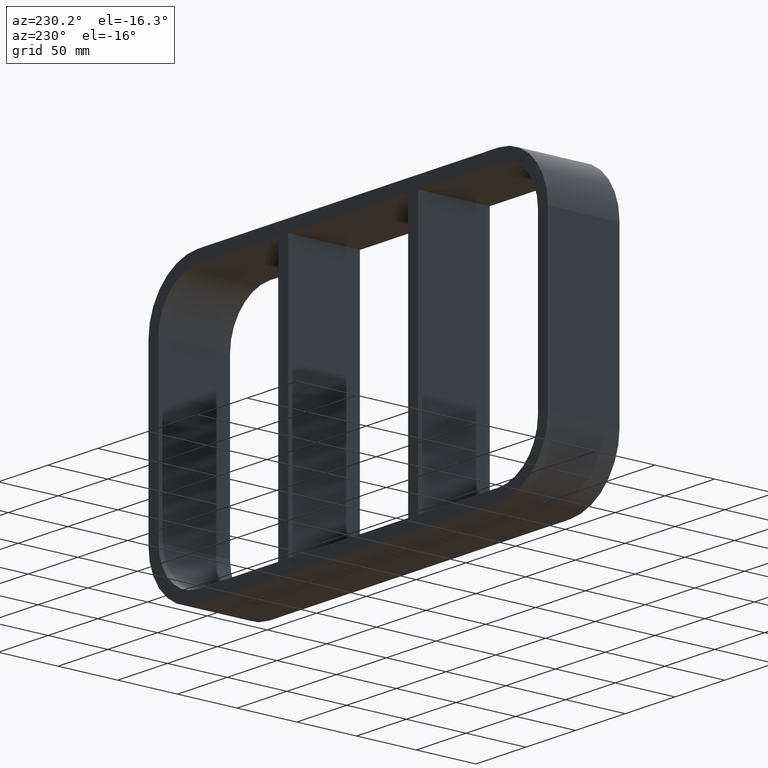
[diagram: clean part render]
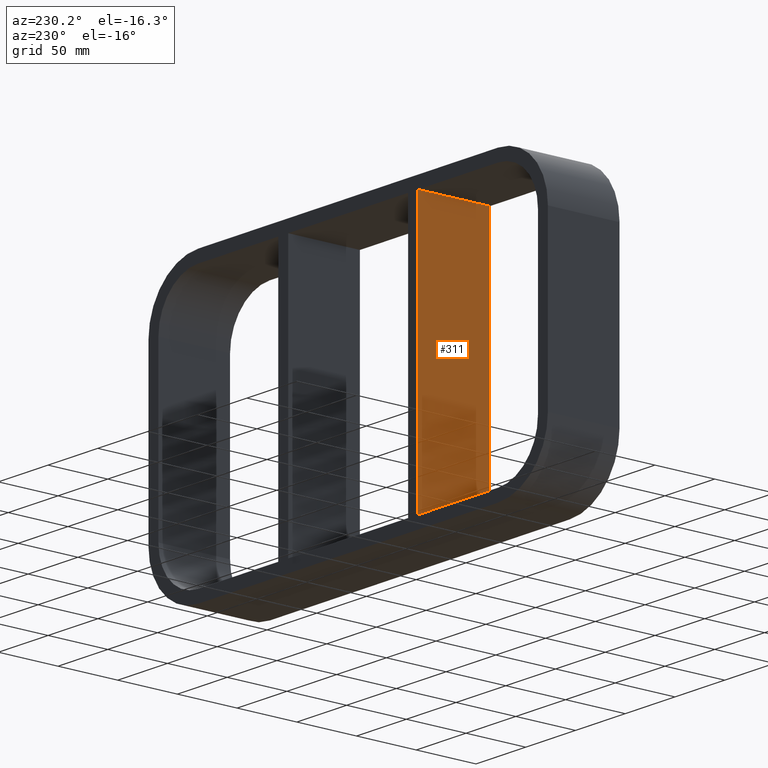
[diagram: same view with one face highlighted and labeled with its STEP entity id]
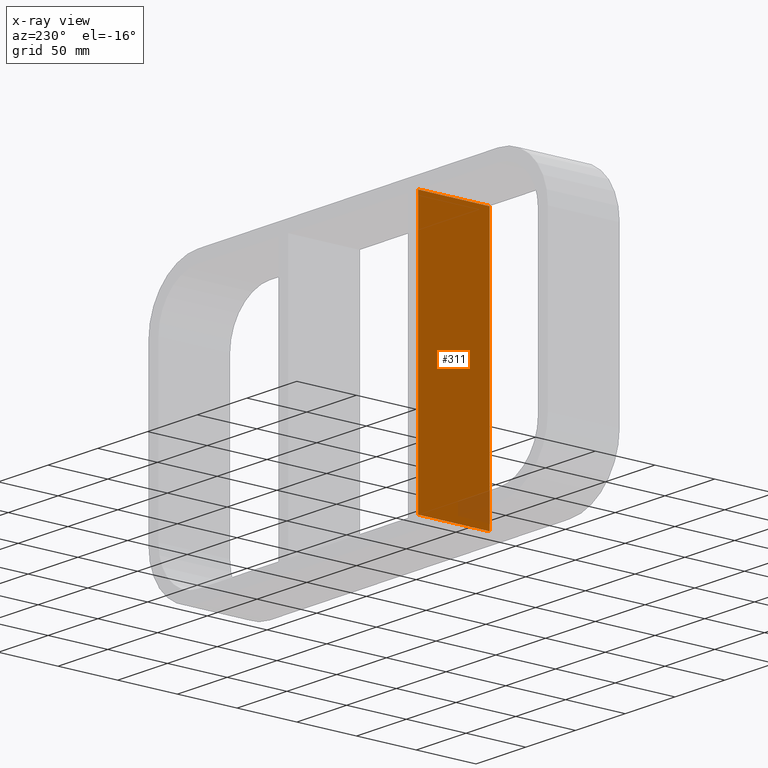
[diagram: x-ray of the same camera — body ghosted, the highlighted face saturated]
A machine part, auxiliary view. The second image highlights one B-rep face of the part: STEP entity #311.
The next image is the same camera in x-ray: the body ghosted, the highlighted face saturated — about 3% of this face is hidden behind the body in this view.
In plain terms, the highlighted planar face has unit normal (-1, 0, 0).
Its self-contained STEP definition (entity closure, byte-faithful):
#272=CARTESIAN_POINT('',(-70.250000000001478,-3.0,-108.99999999999999));
#273=DIRECTION('',(-1.0,0.0,0.0));
#274=DIRECTION('',(0.0,0.0,1.0));
#275=AXIS2_PLACEMENT_3D('',#272,#273,#274);
#276=PLANE('',#275);
#277=CARTESIAN_POINT('',(-70.250000000001478,-3.0,-108.99999999999999));
#278=VERTEX_POINT('',#277);
#279=CARTESIAN_POINT('',(-70.250000000001506,-3.0,108.99999999999999));
#280=VERTEX_POINT('',#279);
#281=CARTESIAN_POINT('',(-70.250000000001478,-3.0,-108.99999999999999));
#282=DIRECTION('',(0.0,0.0,1.0));
#283=VECTOR('',#282,217.99999999999997);
#284=LINE('',#281,#283);
#285=EDGE_CURVE('',#278,#280,#284,.T.);
#286=ORIENTED_EDGE('',*,*,#285,.T.);
#287=CARTESIAN_POINT('',(-70.250000000001506,57.0,108.99999999999999));
#288=VERTEX_POINT('',#287);
#289=CARTESIAN_POINT('',(-70.250000000001506,57.000000000000007,108.99999999999999));
#290=DIRECTION('',(0.0,-1.0,0.0));
#291=VECTOR('',#290,60.000000000000007);
#292=LINE('',#289,#291);
#293=EDGE_CURVE('',#288,#280,#292,.T.);
#294=ORIENTED_EDGE('',*,*,#293,.F.);
#295=CARTESIAN_POINT('',(-70.250000000001478,57.0,-108.99999999999999));
#296=VERTEX_POINT('',#295);
#297=CARTESIAN_POINT('',(-70.250000000001478,57.0,-108.99999999999999));
#298=DIRECTION('',(0.0,0.0,1.0));
#299=VECTOR('',#298,217.99999999999997);
#300=LINE('',#297,#299);
#301=EDGE_CURVE('',#296,#288,#300,.T.);
#302=ORIENTED_EDGE('',*,*,#301,.F.);
#303=CARTESIAN_POINT('',(-70.250000000001478,-3.0,-108.99999999999999));
#304=DIRECTION('',(0.0,1.0,0.0));
#305=VECTOR('',#304,60.000000000000007);
#306=LINE('',#303,#305);
#307=EDGE_CURVE('',#278,#296,#306,.T.);
#308=ORIENTED_EDGE('',*,*,#307,.F.);
#309=EDGE_LOOP('',(#286,#294,#302,#308));
#310=FACE_OUTER_BOUND('',#309,.T.);
#311=ADVANCED_FACE('',(#310),#276,.T.);